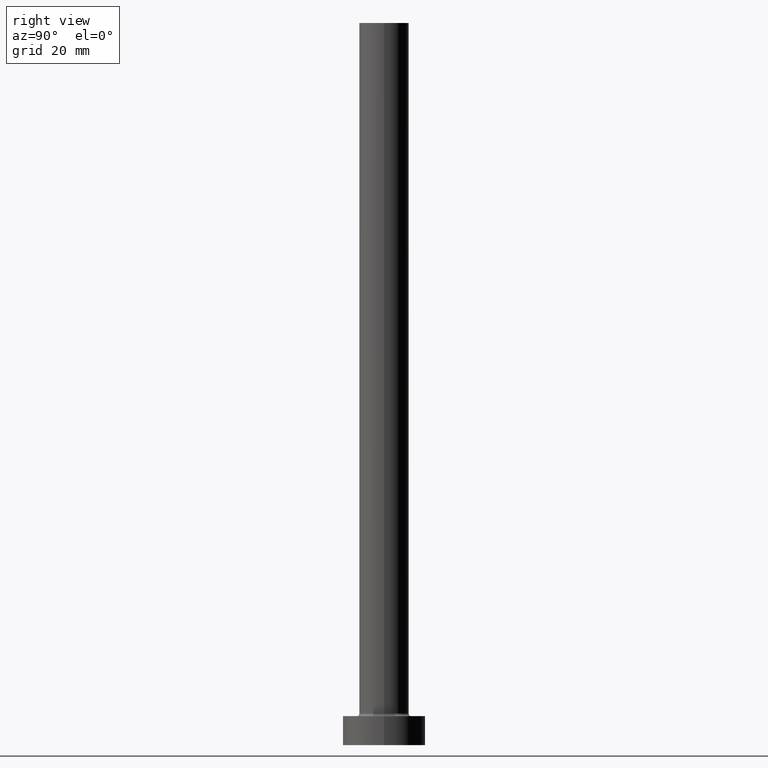
[diagram: clean part render]
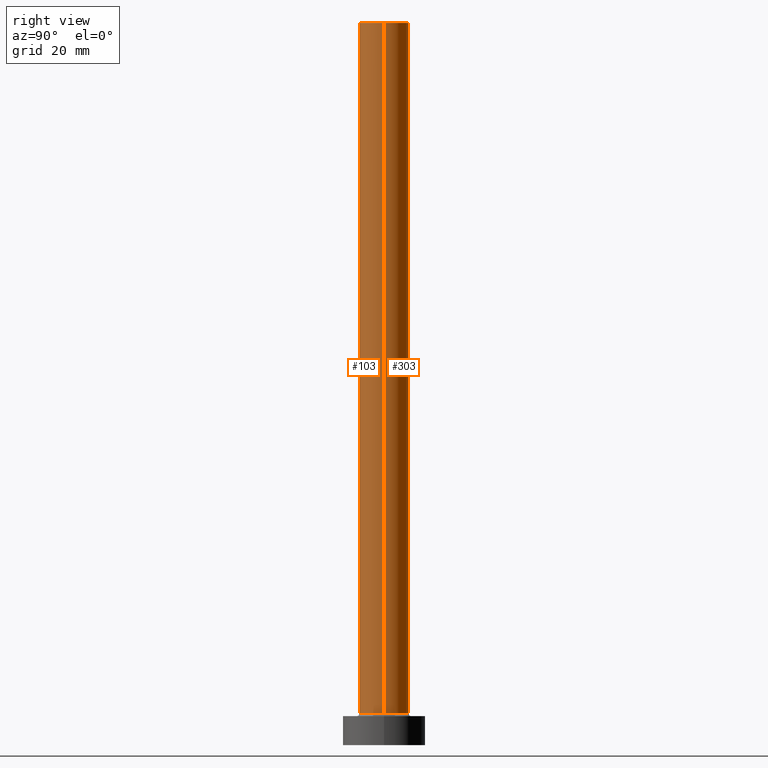
[diagram: same view with one multi-face feature highlighted, each face labeled with its STEP entity id]
A machine part, right view. The highlighted faces form ONE feature: a constant-radius fillet chain: 2 tangent blend faces with common blend radius 6 mm. The faces share edges in the B-rep.
Their STEP definitions:
[1] entity #103 (Cylinder):
#11 = CARTESIAN_POINT ( 'NONE',  ( 6.000000000000000888, 7.347880794884119736E-16, 175.0000000000000284 ) ) ;
#22 = ORIENTED_EDGE ( 'NONE', *, *, #291, .T. ) ;
#25 = DIRECTION ( 'NONE',  ( -1.000000000000000000, 0.000000000000000000, 0.000000000000000000 ) ) ;
#50 = CARTESIAN_POINT ( 'NONE',  ( 6.000000000000000888, 7.347880794884119736E-16, 175.0000000000000284 ) ) ;
#51 = VERTEX_POINT ( 'NONE', #185 ) ;
#54 = DIRECTION ( 'NONE',  ( 1.000000000000000000, 0.000000000000000000, 0.000000000000000000 ) ) ;
#68 = EDGE_CURVE ( 'NONE', #127, #51, #385, .T. ) ;
#72 = DIRECTION ( 'NONE',  ( 0.000000000000000000, 0.000000000000000000, 1.000000000000000000 ) ) ;
#74 = DIRECTION ( 'NONE',  ( 1.000000000000000000, 0.000000000000000000, 0.000000000000000000 ) ) ;
#101 = CARTESIAN_POINT ( 'NONE',  ( 0.000000000000000000, 0.000000000000000000, 175.0000000000000284 ) ) ;
#103 = ADVANCED_FACE ( 'NONE', ( #134 ), #280, .T. ) ;
#124 = ORIENTED_EDGE ( 'NONE', *, *, #68, .T. ) ;
#127 = VERTEX_POINT ( 'NONE', #329 ) ;
#130 = ORIENTED_EDGE ( 'NONE', *, *, #328, .F. ) ;
#134 = FACE_OUTER_BOUND ( 'NONE', #245, .T. ) ;
#140 = VERTEX_POINT ( 'NONE', #11 ) ;
#185 = CARTESIAN_POINT ( 'NONE',  ( 6.000000000000000888, 7.347880794884119736E-16, 7.700000000000012612 ) ) ;
#189 = AXIS2_PLACEMENT_3D ( 'NONE', #101, #244, #25 ) ;
#206 = AXIS2_PLACEMENT_3D ( 'NONE', #337, #261, #54 ) ;
#225 = LINE ( 'NONE', #50, #405 ) ;
#244 = DIRECTION ( 'NONE',  ( -0.000000000000000000, -0.000000000000000000, -1.000000000000000000 ) ) ;
#245 = EDGE_LOOP ( 'NONE', ( #130, #430, #22, #124 ) ) ;
#249 = CARTESIAN_POINT ( 'NONE',  ( 0.000000000000000000, 0.000000000000000000, 7.700000000000012612 ) ) ;
#261 = DIRECTION ( 'NONE',  ( 0.000000000000000000, 0.000000000000000000, 1.000000000000000000 ) ) ;
#280 = CYLINDRICAL_SURFACE ( 'NONE', #189, 6.000000000000000888 ) ;
#282 = CARTESIAN_POINT ( 'NONE',  ( -6.000000000000000888, 0.000000000000000000, 175.0000000000000284 ) ) ;
#286 = AXIS2_PLACEMENT_3D ( 'NONE', #249, #72, #74 ) ;
#288 = VERTEX_POINT ( 'NONE', #317 ) ;
#291 = EDGE_CURVE ( 'NONE', #288, #127, #455, .T. ) ;
#296 = CIRCLE ( 'NONE', #206, 6.000000000000000888 ) ;
#317 = CARTESIAN_POINT ( 'NONE',  ( -6.000000000000000888, 0.000000000000000000, 175.0000000000000284 ) ) ;
#328 = EDGE_CURVE ( 'NONE', #140, #51, #225, .T. ) ;
#329 = CARTESIAN_POINT ( 'NONE',  ( -6.000000000000000888, 0.000000000000000000, 7.700000000000012612 ) ) ;
#337 = CARTESIAN_POINT ( 'NONE',  ( 0.000000000000000000, 0.000000000000000000, 175.0000000000000284 ) ) ;
#354 = DIRECTION ( 'NONE',  ( -0.000000000000000000, -0.000000000000000000, -1.000000000000000000 ) ) ;
#385 = CIRCLE ( 'NONE', #286, 6.000000000000000888 ) ;
#405 = VECTOR ( 'NONE', #406, 1000.000000000000000 ) ;
#406 = DIRECTION ( 'NONE',  ( -0.000000000000000000, -0.000000000000000000, -1.000000000000000000 ) ) ;
#415 = VECTOR ( 'NONE', #354, 1000.000000000000000 ) ;
#421 = EDGE_CURVE ( 'NONE', #288, #140, #296, .T. ) ;
#430 = ORIENTED_EDGE ( 'NONE', *, *, #421, .F. ) ;
#455 = LINE ( 'NONE', #282, #415 ) ;
[2] entity #303 (Cylinder):
#11 = CARTESIAN_POINT ( 'NONE',  ( 6.000000000000000888, 7.347880794884119736E-16, 175.0000000000000284 ) ) ;
#13 = DIRECTION ( 'NONE',  ( 1.000000000000000000, 0.000000000000000000, 0.000000000000000000 ) ) ;
#31 = CYLINDRICAL_SURFACE ( 'NONE', #361, 6.000000000000000888 ) ;
#34 = DIRECTION ( 'NONE',  ( -1.000000000000000000, 0.000000000000000000, 0.000000000000000000 ) ) ;
#43 = EDGE_LOOP ( 'NONE', ( #252, #175, #381, #58 ) ) ;
#50 = CARTESIAN_POINT ( 'NONE',  ( 6.000000000000000888, 7.347880794884119736E-16, 175.0000000000000284 ) ) ;
#51 = VERTEX_POINT ( 'NONE', #185 ) ;
#53 = CARTESIAN_POINT ( 'NONE',  ( 0.000000000000000000, 0.000000000000000000, 175.0000000000000284 ) ) ;
#58 = ORIENTED_EDGE ( 'NONE', *, *, #291, .F. ) ;
#65 = CIRCLE ( 'NONE', #372, 6.000000000000000888 ) ;
#70 = CIRCLE ( 'NONE', #397, 6.000000000000000888 ) ;
#127 = VERTEX_POINT ( 'NONE', #329 ) ;
#140 = VERTEX_POINT ( 'NONE', #11 ) ;
#155 = CARTESIAN_POINT ( 'NONE',  ( 0.000000000000000000, 0.000000000000000000, 7.700000000000012612 ) ) ;
#157 = EDGE_CURVE ( 'NONE', #140, #288, #70, .T. ) ;
#175 = ORIENTED_EDGE ( 'NONE', *, *, #328, .T. ) ;
#181 = DIRECTION ( 'NONE',  ( -0.000000000000000000, -0.000000000000000000, -1.000000000000000000 ) ) ;
#185 = CARTESIAN_POINT ( 'NONE',  ( 6.000000000000000888, 7.347880794884119736E-16, 7.700000000000012612 ) ) ;
#213 = CARTESIAN_POINT ( 'NONE',  ( 0.000000000000000000, 0.000000000000000000, 175.0000000000000284 ) ) ;
#225 = LINE ( 'NONE', #50, #405 ) ;
#246 = FACE_OUTER_BOUND ( 'NONE', #43, .T. ) ;
#252 = ORIENTED_EDGE ( 'NONE', *, *, #157, .F. ) ;
#262 = DIRECTION ( 'NONE',  ( 0.000000000000000000, 0.000000000000000000, 1.000000000000000000 ) ) ;
#264 = DIRECTION ( 'NONE',  ( 1.000000000000000000, 0.000000000000000000, 0.000000000000000000 ) ) ;
#282 = CARTESIAN_POINT ( 'NONE',  ( -6.000000000000000888, 0.000000000000000000, 175.0000000000000284 ) ) ;
#288 = VERTEX_POINT ( 'NONE', #317 ) ;
#291 = EDGE_CURVE ( 'NONE', #288, #127, #455, .T. ) ;
#301 = DIRECTION ( 'NONE',  ( 0.000000000000000000, 0.000000000000000000, 1.000000000000000000 ) ) ;
#303 = ADVANCED_FACE ( 'NONE', ( #246 ), #31, .T. ) ;
#317 = CARTESIAN_POINT ( 'NONE',  ( -6.000000000000000888, 0.000000000000000000, 175.0000000000000284 ) ) ;
#328 = EDGE_CURVE ( 'NONE', #140, #51, #225, .T. ) ;
#329 = CARTESIAN_POINT ( 'NONE',  ( -6.000000000000000888, 0.000000000000000000, 7.700000000000012612 ) ) ;
#354 = DIRECTION ( 'NONE',  ( -0.000000000000000000, -0.000000000000000000, -1.000000000000000000 ) ) ;
#361 = AXIS2_PLACEMENT_3D ( 'NONE', #213, #181, #34 ) ;
#372 = AXIS2_PLACEMENT_3D ( 'NONE', #155, #301, #264 ) ;
#381 = ORIENTED_EDGE ( 'NONE', *, *, #445, .T. ) ;
#397 = AXIS2_PLACEMENT_3D ( 'NONE', #53, #262, #13 ) ;
#405 = VECTOR ( 'NONE', #406, 1000.000000000000000 ) ;
#406 = DIRECTION ( 'NONE',  ( -0.000000000000000000, -0.000000000000000000, -1.000000000000000000 ) ) ;
#415 = VECTOR ( 'NONE', #354, 1000.000000000000000 ) ;
#445 = EDGE_CURVE ( 'NONE', #51, #127, #65, .T. ) ;
#455 = LINE ( 'NONE', #282, #415 ) ;